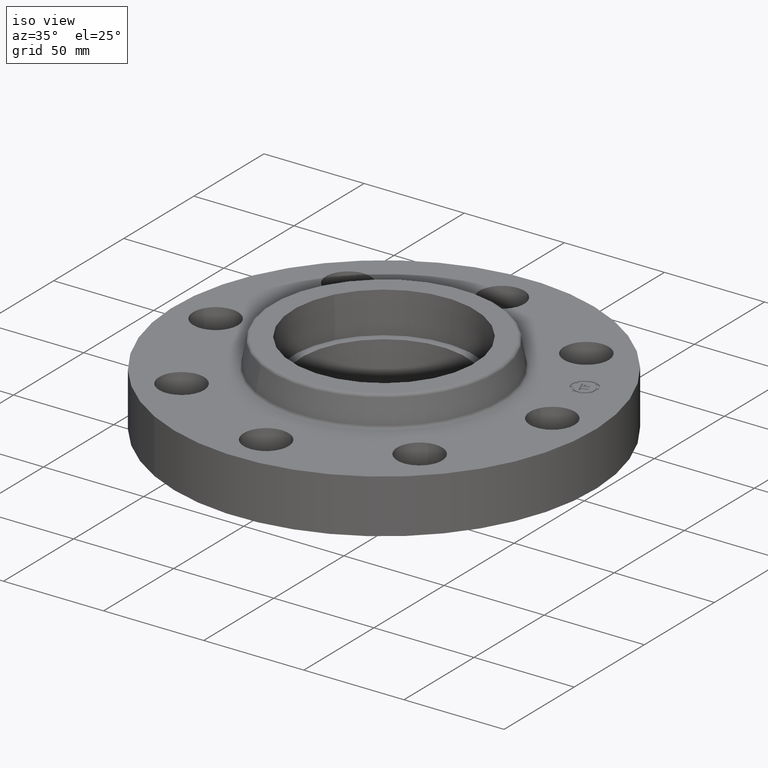
[diagram: clean part render]
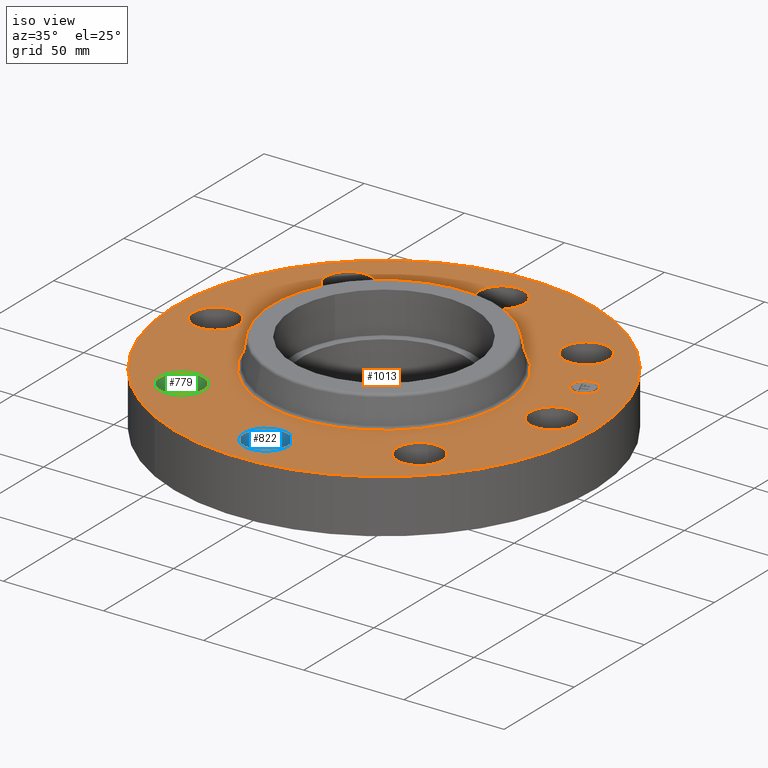
[diagram: same view with three faces highlighted in distinct colors, each labeled with its STEP entity id]
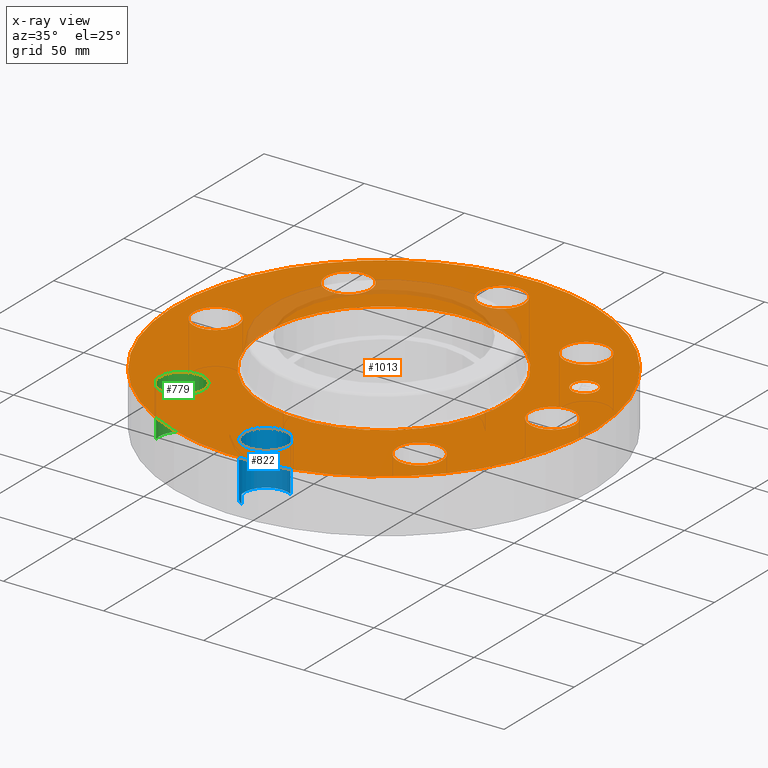
[diagram: x-ray of the same camera — body ghosted, the three highlighted faces saturated]
A machine part, iso view with three faces highlighted in distinct colors.
The next image is the same camera in x-ray (body ghosted, the three faces saturated) — at least one of them is partly hidden behind the body in this view.
Their STEP definitions:

[orange] entity #1013 — the highlighted planar face has unit normal (0, 0, -1).
#377=AXIS2_PLACEMENT_3D('Circle Axis2P3D',#375,#376,$) ;
#396=AXIS2_PLACEMENT_3D('Circle Axis2P3D',#394,#395,$) ;
#413=AXIS2_PLACEMENT_3D('Circle Axis2P3D',#411,#412,$) ;
#448=AXIS2_PLACEMENT_3D('Circle Axis2P3D',#446,#447,$) ;
#598=AXIS2_PLACEMENT_3D('Circle Axis2P3D',#596,#597,$) ;
#610=AXIS2_PLACEMENT_3D('Circle Axis2P3D',#608,#609,$) ;
#641=AXIS2_PLACEMENT_3D('Circle Axis2P3D',#639,#640,$) ;
#653=AXIS2_PLACEMENT_3D('Circle Axis2P3D',#651,#652,$) ;
#684=AXIS2_PLACEMENT_3D('Circle Axis2P3D',#682,#683,$) ;
#696=AXIS2_PLACEMENT_3D('Circle Axis2P3D',#694,#695,$) ;
#727=AXIS2_PLACEMENT_3D('Circle Axis2P3D',#725,#726,$) ;
#739=AXIS2_PLACEMENT_3D('Circle Axis2P3D',#737,#738,$) ;
#770=AXIS2_PLACEMENT_3D('Circle Axis2P3D',#768,#769,$) ;
#782=AXIS2_PLACEMENT_3D('Circle Axis2P3D',#780,#781,$) ;
#813=AXIS2_PLACEMENT_3D('Circle Axis2P3D',#811,#812,$) ;
#825=AXIS2_PLACEMENT_3D('Circle Axis2P3D',#823,#824,$) ;
#856=AXIS2_PLACEMENT_3D('Circle Axis2P3D',#854,#855,$) ;
#868=AXIS2_PLACEMENT_3D('Circle Axis2P3D',#866,#867,$) ;
#899=AXIS2_PLACEMENT_3D('Circle Axis2P3D',#897,#898,$) ;
#911=AXIS2_PLACEMENT_3D('Circle Axis2P3D',#909,#910,$) ;
#953=AXIS2_PLACEMENT_3D('Plane Axis2P3D',#950,#951,#952) ;
#997=AXIS2_PLACEMENT_3D('Circle Axis2P3D',#995,#996,$) ;
#1006=AXIS2_PLACEMENT_3D('Circle Axis2P3D',#1004,#1005,$) ;
#372=CARTESIAN_POINT('Vertex',(-1.97763034675,-3.62002806781,1.06)) ;
#375=CARTESIAN_POINT('Axis2P3D Location',(0.,0.,1.06)) ;
#379=CARTESIAN_POINT('Vertex',(1.97763034675,3.62002806781,1.06)) ;
#394=CARTESIAN_POINT('Axis2P3D Location',(0.,0.,1.06)) ;
#411=CARTESIAN_POINT('Axis2P3D Location',(0.,0.,1.06)) ;
#415=CARTESIAN_POINT('Vertex',(1.13161014174,2.07139847022,1.06)) ;
#417=CARTESIAN_POINT('Vertex',(-1.13161014174,-2.07139847022,1.06)) ;
#446=CARTESIAN_POINT('Axis2P3D Location',(0.,0.,1.06)) ;
#586=CARTESIAN_POINT('Vertex',(2.76272528293,2.46440083944,1.06)) ;
#593=CARTESIAN_POINT('Vertex',(1.91832160854,2.21664605203,1.06)) ;
#596=CARTESIAN_POINT('Axis2P3D Location',(2.34052344574,2.34052344574,1.06)) ;
#608=CARTESIAN_POINT('Axis2P3D Location',(2.34052344574,2.34052344574,1.06)) ;
#629=CARTESIAN_POINT('Vertex',(0.210947236987,3.69613632725,1.06)) ;
#636=CARTESIAN_POINT('Vertex',(-0.210947236987,2.92386367278,1.06)) ;
#639=CARTESIAN_POINT('Axis2P3D Location',(-6.08037135779E-016,3.31000000001,1.06)) ;
#651=CARTESIAN_POINT('Axis2P3D Location',(-6.08037135779E-016,3.31000000001,1.06)) ;
#672=CARTESIAN_POINT('Vertex',(-2.46440083944,2.76272528293,1.06)) ;
#679=CARTESIAN_POINT('Vertex',(-2.21664605203,1.91832160854,1.06)) ;
#682=CARTESIAN_POINT('Axis2P3D Location',(-2.34052344574,2.34052344574,1.06)) ;
#694=CARTESIAN_POINT('Axis2P3D Location',(-2.34052344574,2.34052344574,1.06)) ;
#715=CARTESIAN_POINT('Vertex',(-3.69613632725,0.210947236987,1.06)) ;
#722=CARTESIAN_POINT('Vertex',(-2.92386367278,-0.210947236987,1.06)) ;
#725=CARTESIAN_POINT('Axis2P3D Location',(-3.31000000001,-4.05358090519E-016,1.06)) ;
#737=CARTESIAN_POINT('Axis2P3D Location',(-3.31000000001,-4.05358090519E-016,1.06)) ;
#758=CARTESIAN_POINT('Vertex',(-2.76272528293,-2.46440083944,1.06)) ;
#765=CARTESIAN_POINT('Vertex',(-1.91832160854,-2.21664605203,1.06)) ;
#768=CARTESIAN_POINT('Axis2P3D Location',(-2.34052344574,-2.34052344574,1.06)) ;
#780=CARTESIAN_POINT('Axis2P3D Location',(-2.34052344574,-2.34052344574,1.06)) ;
#801=CARTESIAN_POINT('Vertex',(-0.210947236987,-3.69613632725,1.06)) ;
#808=CARTESIAN_POINT('Vertex',(0.210947236987,-2.92386367278,1.06)) ;
#811=CARTESIAN_POINT('Axis2P3D Location',(-3.56803423843E-016,-3.31000000001,1.06)) ;
#823=CARTESIAN_POINT('Axis2P3D Location',(-3.56803423843E-016,-3.31000000001,1.06)) ;
#844=CARTESIAN_POINT('Vertex',(2.46440083944,-2.76272528293,1.06)) ;
#851=CARTESIAN_POINT('Vertex',(2.21664605203,-1.91832160854,1.06)) ;
#854=CARTESIAN_POINT('Axis2P3D Location',(2.34052344574,-2.34052344574,1.06)) ;
#866=CARTESIAN_POINT('Axis2P3D Location',(2.34052344574,-2.34052344574,1.06)) ;
#887=CARTESIAN_POINT('Vertex',(2.92386367278,0.210947236987,1.06)) ;
#894=CARTESIAN_POINT('Vertex',(3.69613632725,-0.210947236987,1.06)) ;
#897=CARTESIAN_POINT('Axis2P3D Location',(3.31000000001,0.,1.06)) ;
#909=CARTESIAN_POINT('Axis2P3D Location',(3.31000000001,0.,1.06)) ;
#950=CARTESIAN_POINT('Axis2P3D Location',(0.,4.12500000002,1.06)) ;
#995=CARTESIAN_POINT('Axis2P3D Location',(3.05804125262,1.26668216113,1.06)) ;
#999=CARTESIAN_POINT('Vertex',(2.96332710311,1.49534234543,1.06)) ;
#1001=CARTESIAN_POINT('Vertex',(3.15275540214,1.03802197684,1.06)) ;
#1004=CARTESIAN_POINT('Axis2P3D Location',(3.05804125262,1.26668216113,1.06)) ;
#376=DIRECTION('Axis2P3D Direction',(0.,0.,-0.0393700787402)) ;
#395=DIRECTION('Axis2P3D Direction',(0.,0.,-0.0393700787402)) ;
#412=DIRECTION('Axis2P3D Direction',(0.,0.,-0.0393700787402)) ;
#447=DIRECTION('Axis2P3D Direction',(0.,0.,-0.0393700787402)) ;
#597=DIRECTION('Axis2P3D Direction',(0.,0.,-0.0393700787402)) ;
#609=DIRECTION('Axis2P3D Direction',(0.,0.,-0.0393700787402)) ;
#640=DIRECTION('Axis2P3D Direction',(0.,0.,-0.0393700787402)) ;
#652=DIRECTION('Axis2P3D Direction',(0.,0.,-0.0393700787402)) ;
#683=DIRECTION('Axis2P3D Direction',(0.,0.,-0.0393700787402)) ;
#695=DIRECTION('Axis2P3D Direction',(0.,0.,-0.0393700787402)) ;
#726=DIRECTION('Axis2P3D Direction',(-0.,0.,-0.0393700787402)) ;
#738=DIRECTION('Axis2P3D Direction',(-0.,0.,-0.0393700787402)) ;
#769=DIRECTION('Axis2P3D Direction',(-0.,0.,-0.0393700787402)) ;
#781=DIRECTION('Axis2P3D Direction',(-0.,0.,-0.0393700787402)) ;
#812=DIRECTION('Axis2P3D Direction',(0.,-0.,-0.0393700787402)) ;
#824=DIRECTION('Axis2P3D Direction',(0.,-0.,-0.0393700787402)) ;
#855=DIRECTION('Axis2P3D Direction',(0.,-0.,-0.0393700787402)) ;
#867=DIRECTION('Axis2P3D Direction',(0.,-0.,-0.0393700787402)) ;
#898=DIRECTION('Axis2P3D Direction',(0.,-0.,-0.0393700787402)) ;
#910=DIRECTION('Axis2P3D Direction',(0.,-0.,-0.0393700787402)) ;
#951=DIRECTION('Axis2P3D Direction',(0.,0.,-0.0393700787402)) ;
#952=DIRECTION('Axis2P3D XDirection',(0.0393700787402,0.,0.)) ;
#996=DIRECTION('Axis2P3D Direction',(0.,0.,-0.0393700787402)) ;
#1005=DIRECTION('Axis2P3D Direction',(0.,0.,-0.0393700787402)) ;
#956=ORIENTED_EDGE('',*,*,#398,.F.) ;
#957=ORIENTED_EDGE('',*,*,#381,.F.) ;
#960=ORIENTED_EDGE('',*,*,#901,.T.) ;
#961=ORIENTED_EDGE('',*,*,#913,.T.) ;
#964=ORIENTED_EDGE('',*,*,#450,.T.) ;
#965=ORIENTED_EDGE('',*,*,#419,.T.) ;
#968=ORIENTED_EDGE('',*,*,#858,.T.) ;
#969=ORIENTED_EDGE('',*,*,#870,.T.) ;
#972=ORIENTED_EDGE('',*,*,#815,.T.) ;
#973=ORIENTED_EDGE('',*,*,#827,.T.) ;
#976=ORIENTED_EDGE('',*,*,#772,.T.) ;
#977=ORIENTED_EDGE('',*,*,#784,.T.) ;
#980=ORIENTED_EDGE('',*,*,#729,.T.) ;
#981=ORIENTED_EDGE('',*,*,#741,.T.) ;
#984=ORIENTED_EDGE('',*,*,#686,.T.) ;
#985=ORIENTED_EDGE('',*,*,#698,.T.) ;
#988=ORIENTED_EDGE('',*,*,#643,.T.) ;
#989=ORIENTED_EDGE('',*,*,#655,.T.) ;
#992=ORIENTED_EDGE('',*,*,#600,.T.) ;
#993=ORIENTED_EDGE('',*,*,#612,.T.) ;
#1010=ORIENTED_EDGE('',*,*,#1003,.T.) ;
#1011=ORIENTED_EDGE('',*,*,#1008,.T.) ;
#962=FACE_BOUND('',#959,.T.) ;
#966=FACE_BOUND('',#963,.T.) ;
#970=FACE_BOUND('',#967,.T.) ;
#974=FACE_BOUND('',#971,.T.) ;
#978=FACE_BOUND('',#975,.T.) ;
#982=FACE_BOUND('',#979,.T.) ;
#986=FACE_BOUND('',#983,.T.) ;
#990=FACE_BOUND('',#987,.T.) ;
#994=FACE_BOUND('',#991,.T.) ;
#1012=FACE_BOUND('',#1009,.T.) ;
#1013=ADVANCED_FACE('PartBody',(#958,#962,#966,#970,#974,#978,#982,#986,#990,#994,#1012),#954,.F.) ;
#378=CIRCLE('generated circle',#377,4.12500000002) ;
#397=CIRCLE('generated circle',#396,4.12500000002) ;
#414=CIRCLE('generated circle',#413,2.36034597788) ;
#449=CIRCLE('generated circle',#448,2.36034597788) ;
#599=CIRCLE('generated circle',#598,0.440000000002) ;
#611=CIRCLE('generated circle',#610,0.440000000002) ;
#642=CIRCLE('generated circle',#641,0.440000000002) ;
#654=CIRCLE('generated circle',#653,0.440000000002) ;
#685=CIRCLE('generated circle',#684,0.440000000002) ;
#697=CIRCLE('generated circle',#696,0.440000000002) ;
#728=CIRCLE('generated circle',#727,0.440000000002) ;
#740=CIRCLE('generated circle',#739,0.440000000002) ;
#771=CIRCLE('generated circle',#770,0.440000000002) ;
#783=CIRCLE('generated circle',#782,0.440000000002) ;
#814=CIRCLE('generated circle',#813,0.440000000002) ;
#826=CIRCLE('generated circle',#825,0.440000000002) ;
#857=CIRCLE('generated circle',#856,0.440000000002) ;
#869=CIRCLE('generated circle',#868,0.440000000002) ;
#900=CIRCLE('generated circle',#899,0.440000000002) ;
#912=CIRCLE('generated circle',#911,0.440000000002) ;
#998=CIRCLE('generated circle',#997,0.247500000001) ;
#1007=CIRCLE('generated circle',#1006,0.247500000001) ;
#381=EDGE_CURVE('',#373,#380,#378,.T.) ;
#398=EDGE_CURVE('',#380,#373,#397,.T.) ;
#419=EDGE_CURVE('',#416,#418,#414,.T.) ;
#450=EDGE_CURVE('',#418,#416,#449,.T.) ;
#600=EDGE_CURVE('',#587,#594,#599,.T.) ;
#612=EDGE_CURVE('',#594,#587,#611,.T.) ;
#643=EDGE_CURVE('',#630,#637,#642,.T.) ;
#655=EDGE_CURVE('',#637,#630,#654,.T.) ;
#686=EDGE_CURVE('',#673,#680,#685,.T.) ;
#698=EDGE_CURVE('',#680,#673,#697,.T.) ;
#729=EDGE_CURVE('',#716,#723,#728,.T.) ;
#741=EDGE_CURVE('',#723,#716,#740,.T.) ;
#772=EDGE_CURVE('',#759,#766,#771,.T.) ;
#784=EDGE_CURVE('',#766,#759,#783,.T.) ;
#815=EDGE_CURVE('',#802,#809,#814,.T.) ;
#827=EDGE_CURVE('',#809,#802,#826,.T.) ;
#858=EDGE_CURVE('',#845,#852,#857,.T.) ;
#870=EDGE_CURVE('',#852,#845,#869,.T.) ;
#901=EDGE_CURVE('',#888,#895,#900,.T.) ;
#913=EDGE_CURVE('',#895,#888,#912,.T.) ;
#1003=EDGE_CURVE('',#1000,#1002,#998,.T.) ;
#1008=EDGE_CURVE('',#1002,#1000,#1007,.T.) ;
#955=EDGE_LOOP('',(#956,#957)) ;
#959=EDGE_LOOP('',(#960,#961)) ;
#963=EDGE_LOOP('',(#964,#965)) ;
#967=EDGE_LOOP('',(#968,#969)) ;
#971=EDGE_LOOP('',(#972,#973)) ;
#975=EDGE_LOOP('',(#976,#977)) ;
#979=EDGE_LOOP('',(#980,#981)) ;
#983=EDGE_LOOP('',(#984,#985)) ;
#987=EDGE_LOOP('',(#988,#989)) ;
#991=EDGE_LOOP('',(#992,#993)) ;
#1009=EDGE_LOOP('',(#1010,#1011)) ;
#958=FACE_OUTER_BOUND('',#955,.T.) ;
#954=PLANE('',#953) ;
#373=VERTEX_POINT('',#372) ;
#380=VERTEX_POINT('',#379) ;
#416=VERTEX_POINT('',#415) ;
#418=VERTEX_POINT('',#417) ;
#587=VERTEX_POINT('',#586) ;
#594=VERTEX_POINT('',#593) ;
#630=VERTEX_POINT('',#629) ;
#637=VERTEX_POINT('',#636) ;
#673=VERTEX_POINT('',#672) ;
#680=VERTEX_POINT('',#679) ;
#716=VERTEX_POINT('',#715) ;
#723=VERTEX_POINT('',#722) ;
#759=VERTEX_POINT('',#758) ;
#766=VERTEX_POINT('',#765) ;
#802=VERTEX_POINT('',#801) ;
#809=VERTEX_POINT('',#808) ;
#845=VERTEX_POINT('',#844) ;
#852=VERTEX_POINT('',#851) ;
#888=VERTEX_POINT('',#887) ;
#895=VERTEX_POINT('',#894) ;
#1000=VERTEX_POINT('',#999) ;
#1002=VERTEX_POINT('',#1001) ;

[blue] entity #822 — the highlighted cylindrical surface (edge-blend (fillet) strip) has radius 11.176 mm, axis along (0, -0, -1).
#265=AXIS2_PLACEMENT_3D('Circle Axis2P3D',#263,#264,$) ;
#795=AXIS2_PLACEMENT_3D('Cylinder Axis2P3D',#792,#793,#794) ;
#813=AXIS2_PLACEMENT_3D('Circle Axis2P3D',#811,#812,$) ;
#258=CARTESIAN_POINT('Vertex',(0.210947236987,-2.92386367278,0.)) ;
#260=CARTESIAN_POINT('Vertex',(-0.210947236987,-3.69613632725,0.)) ;
#263=CARTESIAN_POINT('Axis2P3D Location',(-5.24514814784E-016,-3.31000000001,0.)) ;
#792=CARTESIAN_POINT('Axis2P3D Location',(-3.56803423843E-016,-3.31000000001,1.05606299213)) ;
#797=CARTESIAN_POINT('Line Origine',(-0.210947236987,-3.69613632725,0.530000000002)) ;
#801=CARTESIAN_POINT('Vertex',(-0.210947236987,-3.69613632725,1.06)) ;
#804=CARTESIAN_POINT('Line Origine',(0.210947236987,-2.92386367278,0.530000000002)) ;
#808=CARTESIAN_POINT('Vertex',(0.210947236987,-2.92386367278,1.06)) ;
#811=CARTESIAN_POINT('Axis2P3D Location',(-3.56803423843E-016,-3.31000000001,1.06)) ;
#264=DIRECTION('Axis2P3D Direction',(0.,0.,-0.0393700787402)) ;
#793=DIRECTION('Axis2P3D Direction',(0.,-0.,-0.0393700787402)) ;
#794=DIRECTION('Axis2P3D XDirection',(0.0188750212049,0.0345504945626,-0.)) ;
#798=DIRECTION('Vector Direction',(0.,0.,-0.0393700787402)) ;
#805=DIRECTION('Vector Direction',(0.,0.,-0.0393700787402)) ;
#812=DIRECTION('Axis2P3D Direction',(0.,-0.,-0.0393700787402)) ;
#799=VECTOR('Line Direction',#798,0.0393700787402) ;
#806=VECTOR('Line Direction',#805,0.0393700787402) ;
#817=ORIENTED_EDGE('',*,*,#803,.F.) ;
#818=ORIENTED_EDGE('',*,*,#267,.T.) ;
#819=ORIENTED_EDGE('',*,*,#810,.T.) ;
#820=ORIENTED_EDGE('',*,*,#815,.F.) ;
#822=ADVANCED_FACE('PartBody',(#821),#796,.F.) ;
#266=CIRCLE('generated circle',#265,0.440000000002) ;
#814=CIRCLE('generated circle',#813,0.440000000002) ;
#796=CYLINDRICAL_SURFACE('generated cylinder',#795,0.440000000002) ;
#267=EDGE_CURVE('',#261,#259,#266,.T.) ;
#803=EDGE_CURVE('',#261,#802,#800,.F.) ;
#810=EDGE_CURVE('',#259,#809,#807,.F.) ;
#815=EDGE_CURVE('',#802,#809,#814,.T.) ;
#816=EDGE_LOOP('',(#817,#818,#819,#820)) ;
#821=FACE_OUTER_BOUND('',#816,.T.) ;
#800=LINE('Line',#797,#799) ;
#807=LINE('Line',#804,#806) ;
#259=VERTEX_POINT('',#258) ;
#261=VERTEX_POINT('',#260) ;
#802=VERTEX_POINT('',#801) ;
#809=VERTEX_POINT('',#808) ;

[green] entity #779 — the highlighted cylindrical surface (edge-blend (fillet) strip) has radius 11.176 mm, axis along (-0, 0, -1).
#283=AXIS2_PLACEMENT_3D('Circle Axis2P3D',#281,#282,$) ;
#752=AXIS2_PLACEMENT_3D('Cylinder Axis2P3D',#749,#750,#751) ;
#770=AXIS2_PLACEMENT_3D('Circle Axis2P3D',#768,#769,$) ;
#276=CARTESIAN_POINT('Vertex',(-1.91832160854,-2.21664605203,0.)) ;
#278=CARTESIAN_POINT('Vertex',(-2.76272528293,-2.46440083944,0.)) ;
#281=CARTESIAN_POINT('Axis2P3D Location',(-2.34052344574,-2.34052344574,0.)) ;
#749=CARTESIAN_POINT('Axis2P3D Location',(-2.34052344574,-2.34052344574,1.05606299213)) ;
#754=CARTESIAN_POINT('Line Origine',(-2.76272528293,-2.46440083944,0.530000000002)) ;
#758=CARTESIAN_POINT('Vertex',(-2.76272528293,-2.46440083944,1.06)) ;
#761=CARTESIAN_POINT('Line Origine',(-1.91832160854,-2.21664605203,0.530000000002)) ;
#765=CARTESIAN_POINT('Vertex',(-1.91832160854,-2.21664605203,1.06)) ;
#768=CARTESIAN_POINT('Axis2P3D Location',(-2.34052344574,-2.34052344574,1.06)) ;
#282=DIRECTION('Axis2P3D Direction',(0.,0.,-0.0393700787402)) ;
#750=DIRECTION('Axis2P3D Direction',(-0.,0.,-0.0393700787402)) ;
#751=DIRECTION('Axis2P3D XDirection',(0.0377775444876,0.0110842335096,-0.)) ;
#755=DIRECTION('Vector Direction',(0.,0.,-0.0393700787402)) ;
#762=DIRECTION('Vector Direction',(0.,0.,-0.0393700787402)) ;
#769=DIRECTION('Axis2P3D Direction',(-0.,0.,-0.0393700787402)) ;
#756=VECTOR('Line Direction',#755,0.0393700787402) ;
#763=VECTOR('Line Direction',#762,0.0393700787402) ;
#774=ORIENTED_EDGE('',*,*,#760,.F.) ;
#775=ORIENTED_EDGE('',*,*,#285,.T.) ;
#776=ORIENTED_EDGE('',*,*,#767,.T.) ;
#777=ORIENTED_EDGE('',*,*,#772,.F.) ;
#779=ADVANCED_FACE('PartBody',(#778),#753,.F.) ;
#284=CIRCLE('generated circle',#283,0.440000000002) ;
#771=CIRCLE('generated circle',#770,0.440000000002) ;
#753=CYLINDRICAL_SURFACE('generated cylinder',#752,0.440000000002) ;
#285=EDGE_CURVE('',#279,#277,#284,.T.) ;
#760=EDGE_CURVE('',#279,#759,#757,.F.) ;
#767=EDGE_CURVE('',#277,#766,#764,.F.) ;
#772=EDGE_CURVE('',#759,#766,#771,.T.) ;
#773=EDGE_LOOP('',(#774,#775,#776,#777)) ;
#778=FACE_OUTER_BOUND('',#773,.T.) ;
#757=LINE('Line',#754,#756) ;
#764=LINE('Line',#761,#763) ;
#277=VERTEX_POINT('',#276) ;
#279=VERTEX_POINT('',#278) ;
#759=VERTEX_POINT('',#758) ;
#766=VERTEX_POINT('',#765) ;